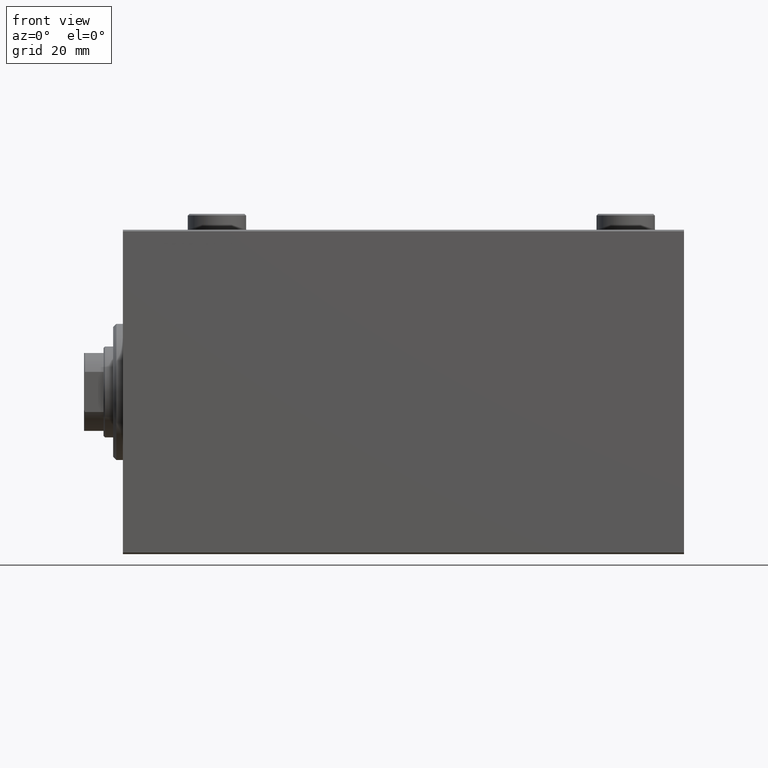
[diagram: clean part render]
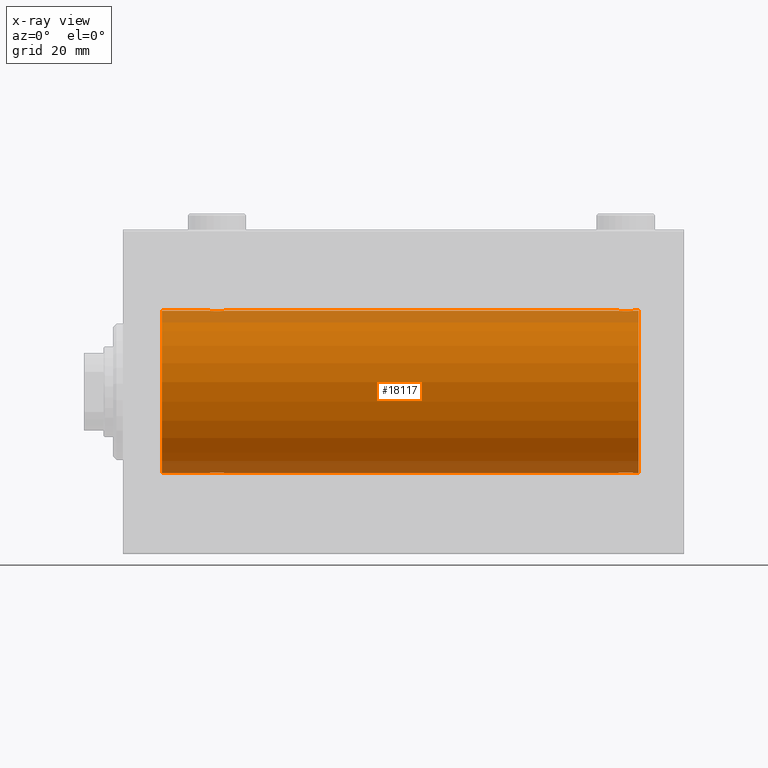
[diagram: x-ray — body ghosted, one internal face saturated and labeled with its STEP entity id]
A machine part, front view, then the same camera in x-ray: the body is ghosted and one INTERNAL B-rep face — a face not visible from any outside direction — is saturated and labeled: STEP entity #18117.
In plain terms, the highlighted cylindrical surface (partial cylindrical patch) has radius 25 mm, axis along (-1, -0, -0).
Its self-contained STEP definition (entity closure, byte-faithful):
#184 = CARTESIAN_POINT ( 'NONE',  ( 31.50000000000000000, 4.363522812204021992E-16, 25.00000000000000000 ) ) ;
#591 = CARTESIAN_POINT ( 'NONE',  ( 156.2508402392405742, -2.170728182476731050, 24.90574631553725027 ) ) ;
#814 = CARTESIAN_POINT ( 'NONE',  ( 153.7461680457550415, -2.169003991399871545, 24.90589728951138682 ) ) ;
#1038 = CARTESIAN_POINT ( 'NONE',  ( 156.8818595414864205, -1.653834020452921383, 24.94550385189584318 ) ) ;
#1828 = CARTESIAN_POINT ( 'NONE',  ( 31.50000000000000000, -0.1631750940176170672, -25.00000000000001421 ) ) ;
#2064 = CARTESIAN_POINT ( 'NONE',  ( 26.50000000000000355, -3.314091892289268660E-15, -25.00000000000000000 ) ) ;
#2188 = CARTESIAN_POINT ( 'NONE',  ( 154.8367641036145415, -2.500125740978203392, -24.87467329022544860 ) ) ;
#2223 = CARTESIAN_POINT ( 'NONE',  ( 152.5000000000000284, -1.859904925762520849E-14, -25.00000000000000000 ) ) ;
#2288 = CARTESIAN_POINT ( 'NONE',  ( 26.50000000000000000, -0.3305063766663776104, -25.00000000000000000 ) ) ;
#2379 = VECTOR ( 'NONE', #17501, 1000.000000000000000 ) ;
#2513 = CARTESIAN_POINT ( 'NONE',  ( 26.83172358506043764, -1.255214705003182774, -24.96884293994578385 ) ) ;
#2643 = CARTESIAN_POINT ( 'NONE',  ( 156.2538319542450438, -2.169003991399876874, -24.90589728951139037 ) ) ;
#2651 = EDGE_CURVE ( 'NONE', #16425, #40762, #42192, .T. ) ;
#2952 = DIRECTION ( 'NONE',  ( 0.000000000000000000, 0.000000000000000000, 1.000000000000000000 ) ) ;
#3099 = CARTESIAN_POINT ( 'NONE',  ( 152.5665064476025918, -0.6588655613945982870, -24.99312727339971119 ) ) ;
#3181 = CARTESIAN_POINT ( 'NONE',  ( 28.35095609830903740, -2.419770561643915130, 24.88263927071751169 ) ) ;
#3423 = CARTESIAN_POINT ( 'NONE',  ( 31.16827641493956591, -1.255214705003181885, 24.96884293994577675 ) ) ;
#3440 = CARTESIAN_POINT ( 'NONE',  ( 159.0000000000000000, 0.000000000000000000, 25.00000000000000000 ) ) ;
#3602 = CARTESIAN_POINT ( 'NONE',  ( 152.5000000000000284, -1.941505016884693205E-23, 25.00000000000000000 ) ) ;
#3652 = CARTESIAN_POINT ( 'NONE',  ( 28.83293504821939379, -2.499872792855088122, 24.87469871246082320 ) ) ;
#3828 = CARTESIAN_POINT ( 'NONE',  ( 152.6278403059139919, -0.8058335233485478533, 24.98746277938383287 ) ) ;
#3848 = DIRECTION ( 'NONE',  ( -1.000000000000000000, -0.000000000000000000, -0.000000000000000000 ) ) ;
#4000 = CARTESIAN_POINT ( 'NONE',  ( 159.0000000000000000, 0.000000000000000000, 25.00000000000000000 ) ) ;
#4286 = CARTESIAN_POINT ( 'NONE',  ( 157.2460637909407239, -1.109818057797416602, 24.97580694515542987 ) ) ;
#4562 = CARTESIAN_POINT ( 'NONE',  ( 31.50000000000000000, 3.061616978460191625E-15, -25.00000000000000000 ) ) ;
#4920 = CARTESIAN_POINT ( 'NONE',  ( 26.50000000000000355, -3.314091892289268660E-15, -25.00000000000000000 ) ) ;
#5298 = CARTESIAN_POINT ( 'NONE',  ( 30.25383195424503668, -2.169003991399867104, -24.90589728951139392 ) ) ;
#5524 = CARTESIAN_POINT ( 'NONE',  ( 31.42014909220929653, -0.6480119923854190667, -24.99212088949391131 ) ) ;
#5755 = CARTESIAN_POINT ( 'NONE',  ( 29.16706495178061331, -2.499872792855077908, -24.87469871246083031 ) ) ;
#5874 = ORIENTED_EDGE ( 'NONE', *, *, #10371, .T. ) ;
#5883 = VECTOR ( 'NONE', #25969, 1000.000000000000000 ) ;
#5988 = CARTESIAN_POINT ( 'NONE',  ( 31.50000000000000000, 3.061616978460191625E-15, -25.00000000000000000 ) ) ;
#6113 = CARTESIAN_POINT ( 'NONE',  ( 153.4774322565980924, -1.989585286700263689, -24.92087098724766037 ) ) ;
#6343 = CARTESIAN_POINT ( 'NONE',  ( 155.1670649517805884, -2.499872792855088566, -24.87469871246082675 ) ) ;
#6378 = VERTEX_POINT ( 'NONE', #19467 ) ;
#6656 = CARTESIAN_POINT ( 'NONE',  ( 29.16323589638543012, -2.500125740978199840, 24.87467329022545570 ) ) ;
#6878 = CARTESIAN_POINT ( 'NONE',  ( 26.82988709719075970, -1.252049606094340239, 24.96900299967627390 ) ) ;
#7073 = CYLINDRICAL_SURFACE ( 'NONE', #42499, 25.00000000000000000 ) ;
#7078 = EDGE_CURVE ( 'NONE', #29229, #6378, #9558, .T. ) ;
#7745 = CARTESIAN_POINT ( 'NONE',  ( 153.4746381775692043, -1.987446652080261167, 24.92104239223419881 ) ) ;
#8216 = CARTESIAN_POINT ( 'NONE',  ( 156.6538333614933833, -1.881857718844727190, -24.92933960374833191 ) ) ;
#8267 = VERTEX_POINT ( 'NONE', #44604 ) ;
#8762 = CARTESIAN_POINT ( 'NONE',  ( 29.64904390169096615, -2.419770561643904472, -24.88263927071750814 ) ) ;
#9055 = LINE ( 'NONE', #26138, #41006 ) ;
#9456 = CARTESIAN_POINT ( 'NONE',  ( 28.35439333851368815, -2.420689345803757497, -24.88254961038873248 ) ) ;
#9558 = CIRCLE ( 'NONE', #39795, 25.00000000000000000 ) ;
#9646 = CIRCLE ( 'NONE', #25854, 25.00000000000000000 ) ;
#9684 = CARTESIAN_POINT ( 'NONE',  ( 27.11814045851354393, -1.653834020452935594, -24.94550385189585029 ) ) ;
#9889 = CARTESIAN_POINT ( 'NONE',  ( 26.57985090779071058, -0.6480119923854237296, 24.99212088949391131 ) ) ;
#10257 = CARTESIAN_POINT ( 'NONE',  ( 155.6490439016910727, -2.419770561643909801, -24.88263927071751525 ) ) ;
#10345 = CARTESIAN_POINT ( 'NONE',  ( 30.98538033717095175, -1.528152964861311913, 24.95362559291379156 ) ) ;
#10371 = EDGE_CURVE ( 'NONE', #40762, #29229, #27742, .T. ) ;
#10571 = CARTESIAN_POINT ( 'NONE',  ( 31.43349355239748988, -0.6588655613945851863, 24.99312727339971119 ) ) ;
#10749 = CARTESIAN_POINT ( 'NONE',  ( 154.6705231988572962, -2.483544361357272745, 24.87635491893501083 ) ) ;
#10920 = LINE ( 'NONE', #4000, #17031 ) ;
#11200 = CARTESIAN_POINT ( 'NONE',  ( 154.3509560983090978, -2.419770561643911133, 24.88263927071751169 ) ) ;
#11544 = EDGE_CURVE ( 'NONE', #16542, #16425, #30878, .T. ) ;
#11669 = CARTESIAN_POINT ( 'NONE',  ( 157.1701129028093078, -1.252049606094332690, -24.96900299967627390 ) ) ;
#12113 = CARTESIAN_POINT ( 'NONE',  ( 157.5000000000000284, 3.061616978453880738E-15, -25.00000000000000000 ) ) ;
#12309 = CARTESIAN_POINT ( 'NONE',  ( 12.00000000000001066, 3.061616997868382254E-15, -25.00000000000000000 ) ) ;
#12799 = CARTESIAN_POINT ( 'NONE',  ( 155.8078834240581045, -2.371528299825748309, -24.88734287464370709 ) ) ;
#13134 = CARTESIAN_POINT ( 'NONE',  ( 30.11036796508863844, -2.245863995402896496, -24.89899750494197761 ) ) ;
#13340 = CARTESIAN_POINT ( 'NONE',  ( 31.50000000000000711, -0.3305063766663750568, 25.00000000000000355 ) ) ;
#13478 = CARTESIAN_POINT ( 'NONE',  ( 154.6740342996054096, -2.484007091859774530, -24.87630842367762796 ) ) ;
#13773 = CARTESIAN_POINT ( 'NONE',  ( 159.0000000000000000, 3.061616997868382254E-15, -25.00000000000000000 ) ) ;
#13797 = CARTESIAN_POINT ( 'NONE',  ( 27.74616804575497042, -2.169003991399875098, 24.90589728951138682 ) ) ;
#14253 = CARTESIAN_POINT ( 'NONE',  ( 27.34616663850662377, -1.881857718844722527, 24.92933960374834967 ) ) ;
#14651 = DIRECTION ( 'NONE',  ( 0.000000000000000000, 0.000000000000000000, 1.000000000000000000 ) ) ;
#14890 = CARTESIAN_POINT ( 'NONE',  ( 155.6456066614863119, -2.420689345803765935, 24.88254961038872892 ) ) ;
#15112 = CARTESIAN_POINT ( 'NONE',  ( 156.1072384583841313, -2.247417070759898383, 24.89885693081946982 ) ) ;
#15336 = CARTESIAN_POINT ( 'NONE',  ( 155.3259657003945904, -2.484007091859768313, 24.87630842367763151 ) ) ;
#15357 = CARTESIAN_POINT ( 'NONE',  ( 157.5000000000000000, -0.1631750940176165676, -25.00000000000000711 ) ) ;
#15777 = ORIENTED_EDGE ( 'NONE', *, *, #40474, .F. ) ;
#15900 = CARTESIAN_POINT ( 'NONE',  ( 30.65383336149338334, -1.881857718844711869, -24.92933960374833902 ) ) ;
#16192 = DIRECTION ( 'NONE',  ( -1.000000000000000000, -0.000000000000000000, -0.000000000000000000 ) ) ;
#16302 = EDGE_CURVE ( 'NONE', #19908, #40464, #17048, .T. ) ;
#16425 = VERTEX_POINT ( 'NONE', #4562 ) ;
#16483 = CARTESIAN_POINT ( 'NONE',  ( 152.8317235850605016, -1.255214705003197873, -24.96884293994578741 ) ) ;
#16542 = VERTEX_POINT ( 'NONE', #2223 ) ;
#16725 = EDGE_CURVE ( 'NONE', #40755, #25993, #26435, .T. ) ;
#16804 = CARTESIAN_POINT ( 'NONE',  ( 26.51582159942343253, -0.3254210271412230626, 24.99840249400844527 ) ) ;
#17031 = VECTOR ( 'NONE', #18520, 1000.000000000000000 ) ;
#17048 = B_SPLINE_CURVE_WITH_KNOTS ( 'NONE', 3,
 ( #31819, #45480, #16804, #9889, #31588, #30907, #6878, #20954, #27657, #14253, #38067, #13797, #34820, #27891, #3181, #35049, #3652, #6656, #17718, #35285, #45029, #41767, #28115, #20731, #42230, #41998, #10345, #3423, #45710, #10571, #13340, #184 ),
 .UNSPECIFIED., .F., .F.,
 ( 4, 2, 2, 2, 2, 2, 2, 2, 2, 2, 2, 2, 2, 2, 2, 4 ),
 ( 0.007821024441662279003, 0.008309723826317887141, 0.008798423210973493544, 0.009287122595629099947, 0.009775821980284708085, 0.01026452136494031622, 0.01075322074959592263, 0.01124192013425153076, 0.01173061951890713717, 0.01221931890356274530, 0.01270801828821835171, 0.01319671767287395811, 0.01368541705752956625, 0.01417411644218517265, 0.01466281582684077905, 0.01564021459615199186 ),
 .UNSPECIFIED. ) ;
#17501 = DIRECTION ( 'NONE',  ( -1.000000000000000000, -0.000000000000000000, -0.000000000000000000 ) ) ;
#17718 = CARTESIAN_POINT ( 'NONE',  ( 29.32596570039460104, -2.484007091859769645, 24.87630842367763506 ) ) ;
#17825 = EDGE_CURVE ( 'NONE', #36315, #45498, #9055, .T. ) ;
#18117 = ADVANCED_FACE ( 'NONE', ( #41101 ), #7073, .F. ) ;
#18520 = DIRECTION ( 'NONE',  ( -1.000000000000000000, -0.000000000000000000, -0.000000000000000000 ) ) ;
#18824 = CARTESIAN_POINT ( 'NONE',  ( 157.4841784005765817, -0.3254210271412191213, -24.99840249400845238 ) ) ;
#19013 = B_SPLINE_CURVE_WITH_KNOTS ( 'NONE', 3,
 ( #12113, #15357, #18824, #19732, #32920, #43346, #11669, #26203, #39864, #8216, #41681, #2643, #41451, #12799, #10257, #27120, #6343, #2188, #13478, #33827, #45392, #31271, #31048, #6113, #26889, #19957, #23879, #16483, #41222, #3099, #37977, #44940 ),
 .UNSPECIFIED., .F., .F.,
 ( 4, 2, 2, 2, 2, 2, 2, 2, 2, 2, 2, 2, 2, 2, 2, 4 ),
 ( 0.007821024441662285942, 0.008309723826317895815, 0.008798423210973505687, 0.009287122595629113825, 0.009775821980284723697, 0.01026452136494033357, 0.01075322074959594344, 0.01124192013425155331, 0.01173061951890716145, 0.01221931890356277133, 0.01270801828821838120, 0.01319671767287399107, 0.01368541705752960094, 0.01417411644218520908, 0.01466281582684082069, 0.01564021459615200574 ),
 .UNSPECIFIED. ) ;
#19371 = CARTESIAN_POINT ( 'NONE',  ( 30.52536182243080987, -1.987446652080259391, -24.92104239223420947 ) ) ;
#19467 = CARTESIAN_POINT ( 'NONE',  ( 12.00000000000001066, 0.000000000000000000, 25.00000000000000000 ) ) ;
#19484 = LINE ( 'NONE', #32906, #5883 ) ;
#19732 = CARTESIAN_POINT ( 'NONE',  ( 157.4201490922093569, -0.6480119923854199548, -24.99212088949390775 ) ) ;
#19829 = CARTESIAN_POINT ( 'NONE',  ( 26.75393620905933290, -1.109818057797415936, -24.97580694515541566 ) ) ;
#19908 = VERTEX_POINT ( 'NONE', #28267 ) ;
#19939 = CARTESIAN_POINT ( 'NONE',  ( 159.0000000000000000, 3.061616997868382254E-15, -25.00000000000000000 ) ) ;
#19957 = CARTESIAN_POINT ( 'NONE',  ( 153.1181404585135795, -1.653834020452954245, -24.94550385189584318 ) ) ;
#20054 = CARTESIAN_POINT ( 'NONE',  ( 30.88412382786470900, -1.651251241585097285, -24.94567559498349141 ) ) ;
#20216 = CARTESIAN_POINT ( 'NONE',  ( 152.5158215994234467, -0.3254210271412218414, 24.99840249400845238 ) ) ;
#20285 = VECTOR ( 'NONE', #38043, 1000.000000000000000 ) ;
#20514 = CARTESIAN_POINT ( 'NONE',  ( 31.50000000000000000, 4.363522812204021992E-16, 25.00000000000000000 ) ) ;
#20731 = CARTESIAN_POINT ( 'NONE',  ( 30.52256774340190049, -1.989585286700249256, 24.92087098724766392 ) ) ;
#20749 = CARTESIAN_POINT ( 'NONE',  ( 157.5000000000000284, 1.255219391854918090E-15, 25.00000000000000000 ) ) ;
#20922 = DIRECTION ( 'NONE',  ( 0.000000000000000000, 0.000000000000000000, 1.000000000000000000 ) ) ;
#20954 = CARTESIAN_POINT ( 'NONE',  ( 27.01250184165602164, -1.525407911884369083, 24.95379469572362652 ) ) ;
#21185 = CARTESIAN_POINT ( 'NONE',  ( 159.0000000000000000, 0.000000000000000000, 0.000000000000000000 ) ) ;
#21824 = CARTESIAN_POINT ( 'NONE',  ( 157.4334935523974934, -0.6588655613945852974, 24.99312727339970763 ) ) ;
#22003 = ORIENTED_EDGE ( 'NONE', *, *, #16302, .T. ) ;
#22266 = CARTESIAN_POINT ( 'NONE',  ( 156.5225677434018792, -1.989585286700258138, 24.92087098724766037 ) ) ;
#23528 = CARTESIAN_POINT ( 'NONE',  ( 29.80788342405805480, -2.371528299825742092, -24.88734287464371420 ) ) ;
#23755 = CARTESIAN_POINT ( 'NONE',  ( 31.17011290280924385, -1.252049606094335354, -24.96900299967627390 ) ) ;
#23879 = CARTESIAN_POINT ( 'NONE',  ( 153.0146196628290625, -1.528152964861327678, -24.95362559291378801 ) ) ;
#25070 = CARTESIAN_POINT ( 'NONE',  ( 152.8298870971907775, -1.252049606094332246, 24.96900299967627390 ) ) ;
#25519 = CARTESIAN_POINT ( 'NONE',  ( 155.1632358963854301, -2.500125740978198063, 24.87467329022544504 ) ) ;
#25743 = CARTESIAN_POINT ( 'NONE',  ( 154.1921165759420376, -2.371528299825750530, 24.88734287464371420 ) ) ;
#25854 = AXIS2_PLACEMENT_3D ( 'NONE', #21185, #45021, #2952 ) ;
#25969 = DIRECTION ( 'NONE',  ( -1.000000000000000000, -0.000000000000000000, -0.000000000000000000 ) ) ;
#25993 = VERTEX_POINT ( 'NONE', #20749 ) ;
#26138 = CARTESIAN_POINT ( 'NONE',  ( 159.0000000000000000, 3.061616997868382254E-15, -25.00000000000000000 ) ) ;
#26203 = CARTESIAN_POINT ( 'NONE',  ( 156.9874981583440103, -1.525407911884363088, -24.95379469572362297 ) ) ;
#26435 = B_SPLINE_CURVE_WITH_KNOTS ( 'NONE', 3,
 ( #3602, #28291, #20216, #34312, #3828, #38935, #25070, #32451, #42404, #32898, #7745, #814, #28756, #25743, #11200, #10749, #35462, #25519, #15336, #14890, #28986, #15112, #591, #22266, #39390, #1038, #29215, #39842, #4286, #21824, #39617, #35920 ),
 .UNSPECIFIED., .F., .F.,
 ( 4, 2, 2, 2, 2, 2, 2, 2, 2, 2, 2, 2, 2, 2, 2, 4 ),
 ( 0.007821024441662285942, 0.008309723826317895815, 0.008798423210973505687, 0.009287122595629115560, 0.009775821980284725432, 0.01026452136494033357, 0.01075322074959594344, 0.01124192013425155331, 0.01173061951890716319, 0.01221931890356277306, 0.01270801828821838120, 0.01319671767287399280, 0.01368541705752960094, 0.01417411644218521255, 0.01466281582684082069, 0.01564021459615200921 ),
 .UNSPECIFIED. ) ;
#26760 = CARTESIAN_POINT ( 'NONE',  ( 28.83676410361456632, -2.500125740978190958, -24.87467329022544504 ) ) ;
#26889 = CARTESIAN_POINT ( 'NONE',  ( 153.3487886644088860, -1.884161199660633113, -24.92916496727982434 ) ) ;
#26995 = CARTESIAN_POINT ( 'NONE',  ( 30.98749815834397836, -1.525407911884361978, -24.95379469572361586 ) ) ;
#27120 = CARTESIAN_POINT ( 'NONE',  ( 155.3294768011427323, -2.483544361357274077, -24.87635491893501083 ) ) ;
#27224 = CARTESIAN_POINT ( 'NONE',  ( 31.37215969408607563, -0.8058335233485417470, -24.98746277938383287 ) ) ;
#27228 = ORIENTED_EDGE ( 'NONE', *, *, #35021, .F. ) ;
#27657 = CARTESIAN_POINT ( 'NONE',  ( 27.11587617213529100, -1.651251241585107055, 24.94567559498348430 ) ) ;
#27742 = LINE ( 'NONE', #34901, #39435 ) ;
#27891 = CARTESIAN_POINT ( 'NONE',  ( 28.19211657594194875, -2.371528299825755859, 24.88734287464371064 ) ) ;
#28115 = CARTESIAN_POINT ( 'NONE',  ( 30.25084023924055643, -2.170728182476724388, 24.90574631553725027 ) ) ;
#28267 = CARTESIAN_POINT ( 'NONE',  ( 26.50000000000000355, -1.940558383798427991E-23, 25.00000000000000000 ) ) ;
#28291 = CARTESIAN_POINT ( 'NONE',  ( 152.5000000000000568, -0.1631750940176196485, 25.00000000000000711 ) ) ;
#28756 = CARTESIAN_POINT ( 'NONE',  ( 153.8896320349114433, -2.245863995402903157, 24.89899750494197761 ) ) ;
#28982 = DIRECTION ( 'NONE',  ( -1.000000000000000000, 0.000000000000000000, 0.000000000000000000 ) ) ;
#28986 = CARTESIAN_POINT ( 'NONE',  ( 155.8043566091629941, -2.372734907014176553, 24.88722742718433167 ) ) ;
#29215 = CARTESIAN_POINT ( 'NONE',  ( 156.9853803371709660, -1.528152964861302587, 24.95362559291378801 ) ) ;
#29229 = VERTEX_POINT ( 'NONE', #12309 ) ;
#30008 = CARTESIAN_POINT ( 'NONE',  ( 27.34878866440888245, -1.884161199660613795, -24.92916496727982079 ) ) ;
#30463 = CARTESIAN_POINT ( 'NONE',  ( 31.48417840057656036, -0.3254210271412189548, -24.99840249400844883 ) ) ;
#30878 = LINE ( 'NONE', #13773, #20285 ) ;
#30907 = CARTESIAN_POINT ( 'NONE',  ( 26.75239748980448695, -1.106703319666887397, 24.97594585958023572 ) ) ;
#31048 = CARTESIAN_POINT ( 'NONE',  ( 153.7491597607594827, -2.170728182476735491, -24.90574631553725027 ) ) ;
#31271 = CARTESIAN_POINT ( 'NONE',  ( 153.8927615416158687, -2.247417070759904156, -24.89885693081946627 ) ) ;
#31588 = CARTESIAN_POINT ( 'NONE',  ( 26.62784030591392437, -0.8058335233485492965, 24.98746277938383287 ) ) ;
#31819 = CARTESIAN_POINT ( 'NONE',  ( 26.50000000000000355, -1.940558383798427991E-23, 25.00000000000000000 ) ) ;
#32451 = CARTESIAN_POINT ( 'NONE',  ( 153.0125018416560181, -1.525407911884361534, 24.95379469572361941 ) ) ;
#32772 = EDGE_CURVE ( 'NONE', #40755, #40464, #19484, .T. ) ;
#32898 = CARTESIAN_POINT ( 'NONE',  ( 153.3461666385066167, -1.881857718844722305, 24.92933960374833546 ) ) ;
#32906 = CARTESIAN_POINT ( 'NONE',  ( 159.0000000000000000, 0.000000000000000000, 25.00000000000000000 ) ) ;
#32920 = CARTESIAN_POINT ( 'NONE',  ( 157.3721596940860650, -0.8058335233485454108, -24.98746277938383287 ) ) ;
#33369 = EDGE_LOOP ( 'NONE', ( #27228, #38664, #35716, #37050, #41744, #5874, #40321, #15777, #22003, #36438, #40079, #43516 ) ) ;
#33827 = CARTESIAN_POINT ( 'NONE',  ( 154.3543933385137166, -2.420689345803772596, -24.88254961038873603 ) ) ;
#33929 = CARTESIAN_POINT ( 'NONE',  ( 26.56650644760251723, -0.6588655613945887390, -24.99312727339970408 ) ) ;
#34152 = CARTESIAN_POINT ( 'NONE',  ( 27.74915976075945778, -2.170728182476716839, -24.90574631553725382 ) ) ;
#34312 = CARTESIAN_POINT ( 'NONE',  ( 152.5798509077907283, -0.6480119923854225084, 24.99212088949390775 ) ) ;
#34820 = CARTESIAN_POINT ( 'NONE',  ( 27.88963203491136156, -2.245863995402907154, 24.89899750494197050 ) ) ;
#34901 = CARTESIAN_POINT ( 'NONE',  ( 159.0000000000000000, 3.061616997868382254E-15, -25.00000000000000000 ) ) ;
#35021 = EDGE_CURVE ( 'NONE', #36315, #8267, #9646, .T. ) ;
#35049 = CARTESIAN_POINT ( 'NONE',  ( 28.67052319885731393, -2.483544361357276742, 24.87635491893502504 ) ) ;
#35068 = LINE ( 'NONE', #3440, #2379 ) ;
#35285 = CARTESIAN_POINT ( 'NONE',  ( 29.64560666148632961, -2.420689345803763715, 24.88254961038873248 ) ) ;
#35462 = CARTESIAN_POINT ( 'NONE',  ( 154.8329350482193831, -2.499872792855083237, 24.87469871246082675 ) ) ;
#35716 = ORIENTED_EDGE ( 'NONE', *, *, #40568, .T. ) ;
#35920 = CARTESIAN_POINT ( 'NONE',  ( 157.5000000000000284, 1.255219391854918090E-15, 25.00000000000000000 ) ) ;
#36315 = VERTEX_POINT ( 'NONE', #19939 ) ;
#36438 = ORIENTED_EDGE ( 'NONE', *, *, #32772, .F. ) ;
#36618 = EDGE_CURVE ( 'NONE', #8267, #25993, #10920, .T. ) ;
#37050 = ORIENTED_EDGE ( 'NONE', *, *, #11544, .T. ) ;
#37163 = CARTESIAN_POINT ( 'NONE',  ( 27.89276154161590426, -2.247417070759893498, -24.89885693081946982 ) ) ;
#37393 = CARTESIAN_POINT ( 'NONE',  ( 29.32947680114268962, -2.483544361357266972, -24.87635491893501793 ) ) ;
#37977 = CARTESIAN_POINT ( 'NONE',  ( 152.5000000000000284, -0.3305063766663936531, -25.00000000000000355 ) ) ;
#38043 = DIRECTION ( 'NONE',  ( -1.000000000000000000, -0.000000000000000000, -0.000000000000000000 ) ) ;
#38067 = CARTESIAN_POINT ( 'NONE',  ( 27.47463817756919013, -1.987446652080266496, 24.92104239223420592 ) ) ;
#38488 = CARTESIAN_POINT ( 'NONE',  ( 159.0000000000000000, 0.000000000000000000, 0.000000000000000000 ) ) ;
#38664 = ORIENTED_EDGE ( 'NONE', *, *, #17825, .T. ) ;
#38935 = CARTESIAN_POINT ( 'NONE',  ( 152.7523974898045367, -1.106703319666886065, 24.97594585958023927 ) ) ;
#39390 = CARTESIAN_POINT ( 'NONE',  ( 156.6512113355911424, -1.884161199660603137, 24.92916496727982079 ) ) ;
#39435 = VECTOR ( 'NONE', #41847, 1000.000000000000000 ) ;
#39617 = CARTESIAN_POINT ( 'NONE',  ( 157.4999999999999432, -0.3305063766663741132, 24.99999999999999645 ) ) ;
#39795 = AXIS2_PLACEMENT_3D ( 'NONE', #40060, #28982, #14651 ) ;
#39842 = CARTESIAN_POINT ( 'NONE',  ( 157.1682764149396405, -1.255214705003171449, 24.96884293994578741 ) ) ;
#39864 = CARTESIAN_POINT ( 'NONE',  ( 156.8841238278647268, -1.651251241585112828, -24.94567559498349496 ) ) ;
#40060 = CARTESIAN_POINT ( 'NONE',  ( 12.00000000000001066, 0.000000000000000000, 0.000000000000000000 ) ) ;
#40079 = ORIENTED_EDGE ( 'NONE', *, *, #16725, .T. ) ;
#40321 = ORIENTED_EDGE ( 'NONE', *, *, #7078, .T. ) ;
#40464 = VERTEX_POINT ( 'NONE', #20514 ) ;
#40474 = EDGE_CURVE ( 'NONE', #19908, #6378, #35068, .T. ) ;
#40568 = EDGE_CURVE ( 'NONE', #45498, #16542, #19013, .T. ) ;
#40636 = CARTESIAN_POINT ( 'NONE',  ( 27.01461966282905536, -1.528152964861311469, -24.95362559291378446 ) ) ;
#40755 = VERTEX_POINT ( 'NONE', #44195 ) ;
#40762 = VERTEX_POINT ( 'NONE', #4920 ) ;
#41006 = VECTOR ( 'NONE', #16192, 1000.000000000000000 ) ;
#41098 = CARTESIAN_POINT ( 'NONE',  ( 31.24760251019550594, -1.106703319666878516, -24.97594585958022861 ) ) ;
#41101 = FACE_OUTER_BOUND ( 'NONE', #33369, .T. ) ;
#41222 = CARTESIAN_POINT ( 'NONE',  ( 152.7539362090593613, -1.109818057797427482, -24.97580694515542987 ) ) ;
#41325 = CARTESIAN_POINT ( 'NONE',  ( 28.67403429960540251, -2.484007091859760763, -24.87630842367763151 ) ) ;
#41451 = CARTESIAN_POINT ( 'NONE',  ( 156.1103679650886988, -2.245863995402897384, -24.89899750494196340 ) ) ;
#41681 = CARTESIAN_POINT ( 'NONE',  ( 156.5253618224308809, -1.987446652080268716, -24.92104239223420947 ) ) ;
#41744 = ORIENTED_EDGE ( 'NONE', *, *, #2651, .T. ) ;
#41767 = CARTESIAN_POINT ( 'NONE',  ( 30.10723845838410639, -2.247417070759899715, 24.89885693081946272 ) ) ;
#41847 = DIRECTION ( 'NONE',  ( -1.000000000000000000, -0.000000000000000000, -0.000000000000000000 ) ) ;
#41998 = CARTESIAN_POINT ( 'NONE',  ( 30.88185954148646317, -1.653834020452941589, 24.94550385189584318 ) ) ;
#42192 = B_SPLINE_CURVE_WITH_KNOTS ( 'NONE', 3,
 ( #5988, #1828, #30463, #5524, #27224, #41098, #23755, #26995, #20054, #15900, #19371, #5298, #13134, #23528, #8762, #37393, #5755, #26760, #41325, #9456, #44354, #37163, #34152, #43889, #30008, #9684, #40636, #2513, #19829, #33929, #2288, #2064 ),
 .UNSPECIFIED., .F., .F.,
 ( 4, 2, 2, 2, 2, 2, 2, 2, 2, 2, 2, 2, 2, 2, 2, 4 ),
 ( 0.007821024441662301555, 0.008309723826317909692, 0.008798423210973519565, 0.009287122595629124233, 0.009775821980284728902, 0.01026452136494033357, 0.01075322074959593997, 0.01124192013425154638, 0.01173061951890715104, 0.01221931890356275571, 0.01270801828821836038, 0.01319671767287396852, 0.01368541705752957319, 0.01417411644218517786, 0.01466281582684078252, 0.01564021459615199880 ),
 .UNSPECIFIED. ) ;
#42230 = CARTESIAN_POINT ( 'NONE',  ( 30.65121133559112820, -1.884161199660620900, 24.92916496727982434 ) ) ;
#42404 = CARTESIAN_POINT ( 'NONE',  ( 153.1158761721353585, -1.651251241585108387, 24.94567559498349141 ) ) ;
#42499 = AXIS2_PLACEMENT_3D ( 'NONE', #38488, #3848, #20922 ) ;
#43346 = CARTESIAN_POINT ( 'NONE',  ( 157.2476025101955202, -1.106703319666883401, -24.97594585958023927 ) ) ;
#43419 = CARTESIAN_POINT ( 'NONE',  ( 157.5000000000000284, 3.061616978453880738E-15, -25.00000000000000000 ) ) ;
#43516 = ORIENTED_EDGE ( 'NONE', *, *, #36618, .F. ) ;
#43889 = CARTESIAN_POINT ( 'NONE',  ( 27.47743225659811017, -1.989585286700241928, -24.92087098724764971 ) ) ;
#44195 = CARTESIAN_POINT ( 'NONE',  ( 152.5000000000000284, -1.941505016884693205E-23, 25.00000000000000000 ) ) ;
#44354 = CARTESIAN_POINT ( 'NONE',  ( 28.19564339083698457, -2.372734907014170780, -24.88722742718433878 ) ) ;
#44604 = CARTESIAN_POINT ( 'NONE',  ( 159.0000000000000000, 0.000000000000000000, 25.00000000000000000 ) ) ;
#44940 = CARTESIAN_POINT ( 'NONE',  ( 152.5000000000000284, -1.859904925762520849E-14, -25.00000000000000000 ) ) ;
#45021 = DIRECTION ( 'NONE',  ( -1.000000000000000000, 0.000000000000000000, 0.000000000000000000 ) ) ;
#45029 = CARTESIAN_POINT ( 'NONE',  ( 29.80435660916302254, -2.372734907014178773, 24.88722742718433878 ) ) ;
#45392 = CARTESIAN_POINT ( 'NONE',  ( 154.1956433908370627, -2.372734907014182326, -24.88722742718433523 ) ) ;
#45480 = CARTESIAN_POINT ( 'NONE',  ( 26.50000000000001066, -0.1631750940176213693, 25.00000000000000355 ) ) ;
#45498 = VERTEX_POINT ( 'NONE', #43419 ) ;
#45710 = CARTESIAN_POINT ( 'NONE',  ( 31.24606379094067066, -1.109818057797415713, 24.97580694515542632 ) ) ;